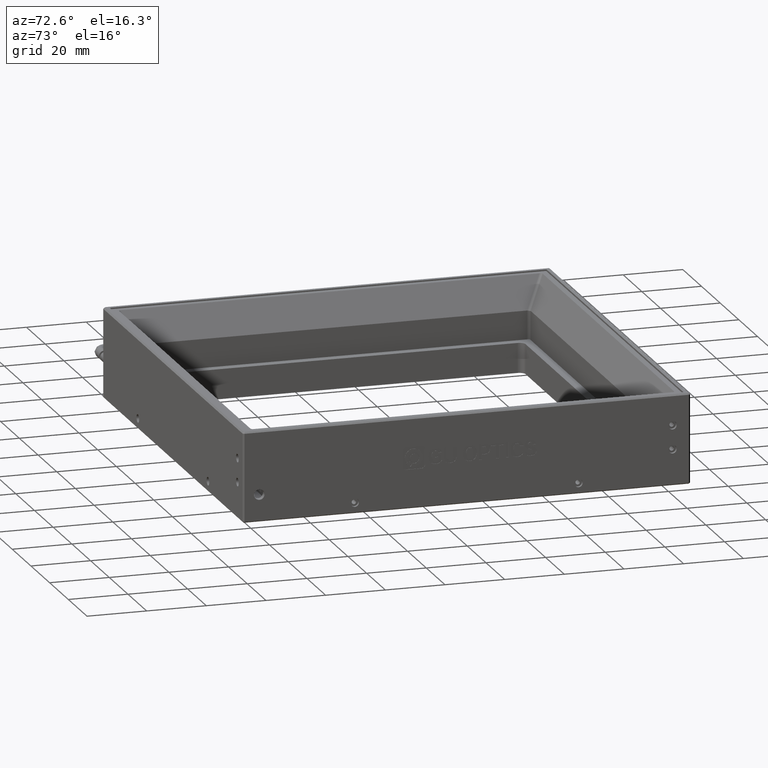
[diagram: clean part render]
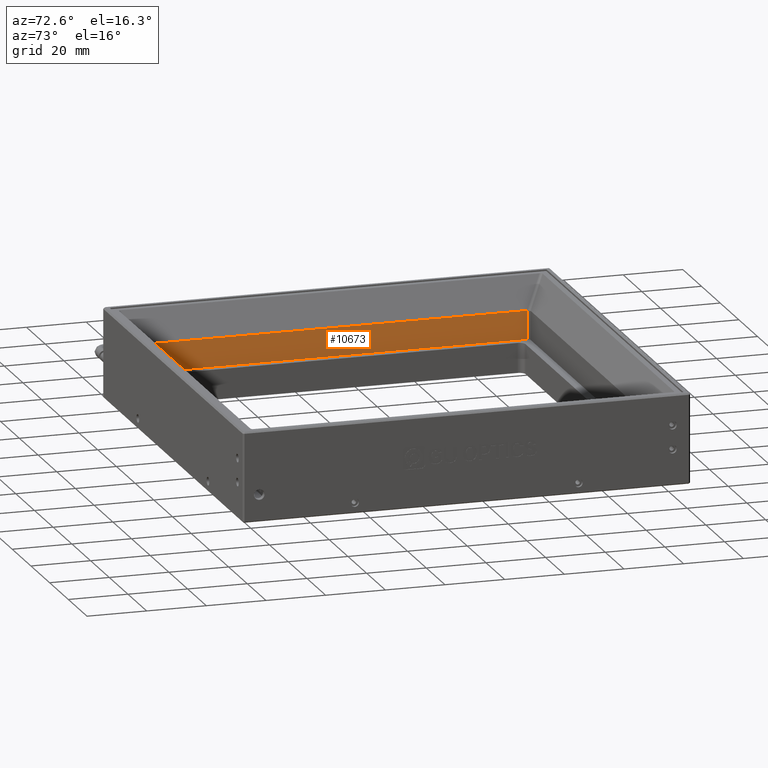
[diagram: same view with one face highlighted and labeled with its STEP entity id]
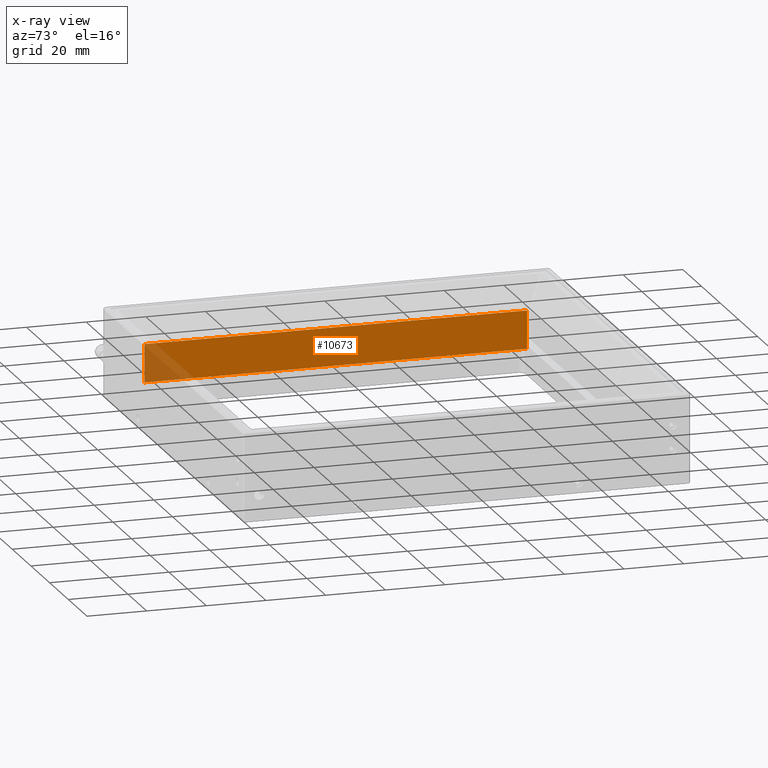
[diagram: x-ray of the same camera — body ghosted, the highlighted face saturated]
A machine part, auxiliary view. The second image highlights one B-rep face of the part: STEP entity #10673.
The next image is the same camera in x-ray: the body ghosted, the highlighted face saturated — about 8% of this face is hidden behind the body in this view.
In plain terms, the highlighted planar face has unit normal (1, -0, 0).
Its self-contained STEP definition (entity closure, byte-faithful):
#572 = CARTESIAN_POINT ( 'NONE',  ( -74.93175061932289800, 74.84938067712634800, 1.800000000000058400 ) ) ;
#2837 = DIRECTION ( 'NONE',  ( 6.938351866336616100E-019, 6.487865800153258500E-016, -1.000000000000000000 ) ) ;
#2876 = AXIS2_PLACEMENT_3D ( 'NONE', #6335, #7925, #18915 ) ;
#3246 = CARTESIAN_POINT ( 'NONE',  ( -74.93175061932289800, 75.84938067712634800, 1.800000000000058400 ) ) ;
#3505 = EDGE_LOOP ( 'NONE', ( #17745, #13659, #3512, #8151 ) ) ;
#3512 = ORIENTED_EDGE ( 'NONE', *, *, #11131, .T. ) ;
#4423 = VERTEX_POINT ( 'NONE', #13178 ) ;
#4741 = DIRECTION ( 'NONE',  ( -6.938351866336616100E-019, -6.487865800153258500E-016, 1.000000000000000000 ) ) ;
#5802 = LINE ( 'NONE', #15694, #14182 ) ;
#6295 = VERTEX_POINT ( 'NONE', #17942 ) ;
#6335 = CARTESIAN_POINT ( 'NONE',  ( -74.93175061932289800, 75.84938067712634800, 1.800000000000058400 ) ) ;
#7065 = VERTEX_POINT ( 'NONE', #7531 ) ;
#7222 = EDGE_CURVE ( 'NONE', #8088, #4423, #10328, .T. ) ;
#7531 = CARTESIAN_POINT ( 'NONE',  ( -74.93175061932289800, -53.35061932287364100, 14.58090023534353500 ) ) ;
#7925 = DIRECTION ( 'NONE',  ( 1.000000000000000000, -2.680289528439754100E-017, 6.938351866336442800E-019 ) ) ;
#8088 = VERTEX_POINT ( 'NONE', #572 ) ;
#8151 = ORIENTED_EDGE ( 'NONE', *, *, #7222, .T. ) ;
#8609 = VECTOR ( 'NONE', #2837, 1000.000000000000000 ) ;
#9080 = EDGE_CURVE ( 'NONE', #7065, #4423, #5802, .T. ) ;
#9377 = DIRECTION ( 'NONE',  ( -2.996798618502874000E-016, 1.000000000000000000, 5.218304167417634300E-016 ) ) ;
#10328 = LINE ( 'NONE', #12444, #14520 ) ;
#10673 = ADVANCED_FACE ( 'NONE', ( #13746 ), #15739, .T. ) ;
#10675 = CARTESIAN_POINT ( 'NONE',  ( -74.93175061932291200, -53.35061932287362700, 1.799999999999975200 ) ) ;
#11131 = EDGE_CURVE ( 'NONE', #6295, #8088, #13955, .T. ) ;
#12444 = CARTESIAN_POINT ( 'NONE',  ( -74.93175061932289800, 74.84938067712634800, 1.800000000000058400 ) ) ;
#12687 = DIRECTION ( 'NONE',  ( 2.680289528439754100E-017, 1.000000000000000000, 6.487865800153258500E-016 ) ) ;
#13178 = CARTESIAN_POINT ( 'NONE',  ( -74.93175061932289800, 74.84938067712634800, 14.58090023534356500 ) ) ;
#13300 = LINE ( 'NONE', #10675, #8609 ) ;
#13659 = ORIENTED_EDGE ( 'NONE', *, *, #16456, .T. ) ;
#13746 = FACE_OUTER_BOUND ( 'NONE', #3505, .T. ) ;
#13955 = LINE ( 'NONE', #3246, #18146 ) ;
#14182 = VECTOR ( 'NONE', #9377, 1000.000000000000000 ) ;
#14520 = VECTOR ( 'NONE', #4741, 1000.000000000000000 ) ;
#15694 = CARTESIAN_POINT ( 'NONE',  ( -74.93175061932288400, -60.25061932287368200, 14.58090023534351200 ) ) ;
#15739 = PLANE ( 'NONE',  #2876 ) ;
#16456 = EDGE_CURVE ( 'NONE', #7065, #6295, #13300, .T. ) ;
#17745 = ORIENTED_EDGE ( 'NONE', *, *, #9080, .F. ) ;
#17942 = CARTESIAN_POINT ( 'NONE',  ( -74.93175061932291200, -53.35061932287362700, 1.799999999999975200 ) ) ;
#18146 = VECTOR ( 'NONE', #12687, 1000.000000000000000 ) ;
#18915 = DIRECTION ( 'NONE',  ( -2.680289528439754100E-017, -1.000000000000000000, -6.487865800153258500E-016 ) ) ;